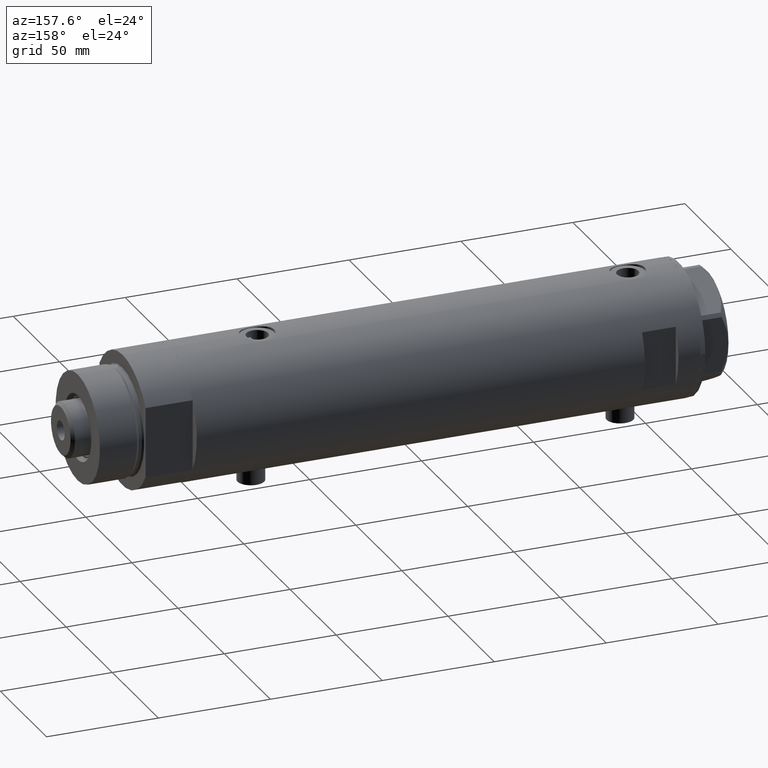
[diagram: clean part render]
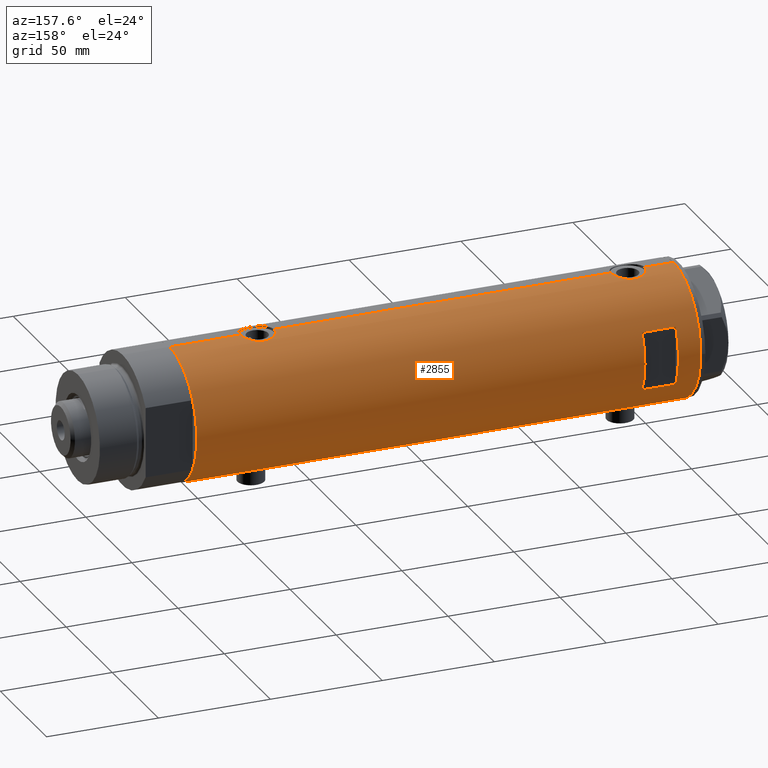
[diagram: same view with one face highlighted and labeled with its STEP entity id]
A machine part, auxiliary view. The second image highlights one B-rep face of the part: STEP entity #2855.
In plain terms, the highlighted cylindrical surface (partial cylindrical patch) has radius 29.5 mm, axis along (-1, -0, 0).
Its self-contained STEP definition (entity closure, byte-faithful):
#29 = CARTESIAN_POINT ( 'NONE',  ( -29.49128627113591605, 0.8212788586050359108, -70.09076875091126624 ) ) ;
#40 = EDGE_CURVE ( 'NONE', #1636, #4768, #3019, .T. ) ;
#48 = CARTESIAN_POINT ( 'NONE',  ( -29.45614208737134021, 1.620034288692375757, -70.26011356088388027 ) ) ;
#75 = CARTESIAN_POINT ( 'NONE',  ( -29.33500454540941149, 3.134363790739238542, 94.02262134463677512 ) ) ;
#78 = CARTESIAN_POINT ( 'NONE',  ( 29.50000000000000355, 0.4977435627019816122, -80.90000000000001990 ) ) ;
#105 = CARTESIAN_POINT ( 'NONE',  ( -29.12335997091253148, 4.707903814166463086, 92.73078007378799725 ) ) ;
#111 = ORIENTED_EDGE ( 'NONE', *, *, #40, .T. ) ;
#124 = LINE ( 'NONE', #1241, #2877 ) ;
#130 = CARTESIAN_POINT ( 'NONE',  ( 28.53063088452981688, 7.500206755597528030, -72.91171143095191098 ) ) ;
#142 = CARTESIAN_POINT ( 'NONE',  ( 29.50000000000000355, 0.000000000000000000, -112.5999999999999943 ) ) ;
#149 = AXIS2_PLACEMENT_3D ( 'NONE', #691, #2162, #2551 ) ;
#152 = CARTESIAN_POINT ( 'NONE',  ( 28.72322018454530479, 6.726124749058844721, -70.07293147149003687 ) ) ;
#176 = CARTESIAN_POINT ( 'NONE',  ( 29.45150476095192360, 1.707859807438206312, 84.79292881343934596 ) ) ;
#181 = CARTESIAN_POINT ( 'NONE',  ( 29.45150476095192360, 1.707859807438206312, -80.70707118656062562 ) ) ;
#194 = DIRECTION ( 'NONE',  ( 0.000000000000000000, 0.000000000000000000, 1.000000000000000000 ) ) ;
#293 = CARTESIAN_POINT ( 'NONE',  ( 28.98787507734748914, 5.475789924529805397, 97.23089043376624829 ) ) ;
#317 = CARTESIAN_POINT ( 'NONE',  ( 28.54372006395177053, 7.450900983269902689, 93.08765735635915917 ) ) ;
#330 = ORIENTED_EDGE ( 'NONE', *, *, #1113, .F. ) ;
#353 = ORIENTED_EDGE ( 'NONE', *, *, #3398, .F. ) ;
#372 = VERTEX_POINT ( 'NONE', #935 ) ;
#381 = DIRECTION ( 'NONE',  ( 0.000000000000000000, 0.000000000000000000, 1.000000000000000000 ) ) ;
#438 = CARTESIAN_POINT ( 'NONE',  ( -29.37021410611213668, 2.770135525807589261, 82.99365930977168659 ) ) ;
#440 = CARTESIAN_POINT ( 'NONE',  ( 28.54350045195476326, 7.451747857568912004, -74.38266002875501215 ) ) ;
#458 = CIRCLE ( 'NONE', #4725, 29.50000000000000355 ) ;
#461 = CARTESIAN_POINT ( 'NONE',  ( -28.99931529802531571, 5.412890550536858747, 85.46870800944782331 ) ) ;
#464 = CARTESIAN_POINT ( 'NONE',  ( 28.95615051861771860, 5.649234316505064690, -78.35715418746728744 ) ) ;
#485 = CARTESIAN_POINT ( 'NONE',  ( -28.83909818927743984, 6.209925900742494065, -75.48221924548005290 ) ) ;
#489 = EDGE_CURVE ( 'NONE', #965, #2620, #4490, .T. ) ;
#494 = CARTESIAN_POINT ( 'NONE',  ( 28.69800960089390074, 6.832546664705498429, -70.29724969708695426 ) ) ;
#512 = DIRECTION ( 'NONE',  ( -0.000000000000000000, -0.000000000000000000, -1.000000000000000000 ) ) ;
#514 = ORIENTED_EDGE ( 'NONE', *, *, #2893, .F. ) ;
#515 = CARTESIAN_POINT ( 'NONE',  ( 28.65280969280607337, 7.019670864411701849, -76.05213168683113167 ) ) ;
#522 = CARTESIAN_POINT ( 'NONE',  ( 12.96148139681573319, 26.49999999999998934, 102.6000000000000085 ) ) ;
#524 = CARTESIAN_POINT ( 'NONE',  ( 29.50000000000000355, 0.000000000000000000, -112.5999999999999943 ) ) ;
#537 = CARTESIAN_POINT ( 'NONE',  ( 28.59637095282950980, 7.245897747848937698, -75.35127374277611523 ) ) ;
#554 = CARTESIAN_POINT ( 'NONE',  ( -29.33379699751450786, 3.132328395749503169, -81.71232164486113447 ) ) ;
#587 = DIRECTION ( 'NONE',  ( 0.000000000000000000, 0.000000000000000000, 1.000000000000000000 ) ) ;
#590 = EDGE_CURVE ( 'NONE', #2620, #1695, #970, .T. ) ;
#594 = DIRECTION ( 'NONE',  ( 0.000000000000000000, 0.000000000000000000, 1.000000000000000000 ) ) ;
#597 = B_SPLINE_CURVE_WITH_KNOTS ( 'NONE', 3,
 ( #3262, #2465, #3289, #176, #3137, #4406, #1021, #3987, #3957, #1786, #1403, #3641, #2150, #2892, #4753, #4007, #2911, #3619, #628, #2494, #2562, #2538, #1067, #4724, #317, #3307, #1428, #3504, #681, #4368, #3667, #4025, #1050, #4769, #293, #4388, #1652, #2102, #659, #3596, #1764, #1445, #701, #4318, #2929, #2128 ),
 .UNSPECIFIED., .F., .F.,
 ( 4, 2, 2, 2, 2, 2, 2, 2, 2, 2, 2, 2, 2, 2, 2, 2, 2, 2, 2, 2, 2, 2, 4 ),
 ( 2.180446897674398484E-18, 0.001471587963626214742, 0.002207381945439317126, 0.002943175927252419943, 0.004414763890878623843, 0.005150557872691738370, 0.005886351854504852897, 0.007357939818131048991, 0.008829527781757242483, 0.009565321763570359612, 0.01030111574538347674, 0.01177270370900966763, 0.01324429167263586199, 0.01471587963626205808, 0.01545167361807515093, 0.01618746759988825071, 0.01692326158170134529, 0.01765905556351443986, 0.01913064352714060473, 0.02060223149076676613, 0.02207381945439293100, 0.02280961343620601170, 0.02354540741801909587 ),
 .UNSPECIFIED. ) ;
#628 = CARTESIAN_POINT ( 'NONE',  ( 28.63233008736633778, 7.102474189478622968, 89.67814868761111313 ) ) ;
#659 = CARTESIAN_POINT ( 'NONE',  ( 29.31521205951408504, 3.327945423969218108, 98.83906509227089998 ) ) ;
#681 = CARTESIAN_POINT ( 'NONE',  ( 28.72322018454530479, 6.726124749058844721, 95.42706852851001997 ) ) ;
#691 = CARTESIAN_POINT ( 'NONE',  ( 0.000000000000000000, 0.000000000000000000, -112.5999999999999943 ) ) ;
#701 = CARTESIAN_POINT ( 'NONE',  ( 29.48463566286631377, 0.9832945201638373378, 99.53937451762296007 ) ) ;
#712 = B_SPLINE_CURVE_WITH_KNOTS ( 'NONE', 3,
 ( #4181, #78, #2300, #181, #3046, #1246, #3442, #2728, #4212, #2361, #3088, #3481, #890, #464, #3849, #859, #3870, #515, #4520, #537, #2333, #440, #4235, #130, #1201, #2383, #1599, #494, #152, #1275, #1656, #3463, #1625, #2016, #1946, #1972, #4592, #2755, #3141, #2651, #4138, #2281, #1916, #2675, #3410, #4160 ),
 .UNSPECIFIED., .F., .F.,
 ( 4, 2, 2, 2, 2, 2, 2, 2, 2, 2, 2, 2, 2, 2, 2, 2, 2, 2, 2, 2, 2, 2, 4 ),
 ( 2.180446897674398484E-18, 0.001471587963626214742, 0.002207381945439317126, 0.002943175927252419943, 0.004414763890878623843, 0.005150557872691738370, 0.005886351854504852897, 0.007357939818131048991, 0.008829527781757242483, 0.009565321763570359612, 0.01030111574538347674, 0.01177270370900966763, 0.01324429167263586199, 0.01471587963626205808, 0.01545167361807515093, 0.01618746759988825071, 0.01692326158170134529, 0.01765905556351443986, 0.01913064352714060473, 0.02060223149076676613, 0.02207381945439293100, 0.02280961343620601170, 0.02354540741801909587 ),
 .UNSPECIFIED. ) ;
#719 = CYLINDRICAL_SURFACE ( 'NONE', #3972, 29.50000000000000355 ) ;
#731 = EDGE_CURVE ( 'NONE', #1545, #3779, #4246, .T. ) ;
#758 = CARTESIAN_POINT ( 'NONE',  ( -29.37156641804198642, 2.775801885207113795, -70.68527430293366365 ) ) ;
#763 = CARTESIAN_POINT ( 'NONE',  ( -29.50000000000000355, 3.612706708236066082E-15, 82.34999999999998010 ) ) ;
#779 = CARTESIAN_POINT ( 'NONE',  ( -29.46640581083894617, 1.421634556901802515, -70.21041108910578998 ) ) ;
#784 = CARTESIAN_POINT ( 'NONE',  ( -28.83925158138407596, 6.209208576703536764, 87.77801617131194689 ) ) ;
#805 = CARTESIAN_POINT ( 'NONE',  ( -28.96085629491409819, 5.616414220648533906, -73.52800360409990788 ) ) ;
#811 = CARTESIAN_POINT ( 'NONE',  ( -29.07990598238133018, 4.966177878631055975, 92.41685031646508719 ) ) ;
#824 = CARTESIAN_POINT ( 'NONE',  ( 29.50000000000000355, -8.867907290838723877E-21, -65.89999999999999147 ) ) ;
#830 = CARTESIAN_POINT ( 'NONE',  ( -29.41782704931129544, 2.208494778271264725, 94.45038297927172266 ) ) ;
#848 = CARTESIAN_POINT ( 'NONE',  ( -29.07990598238133373, 4.966177878631055975, -72.48314968353490428 ) ) ;
#854 = CARTESIAN_POINT ( 'NONE',  ( -28.94521404191312541, 5.694822755760260868, 86.01666953598655141 ) ) ;
#859 = CARTESIAN_POINT ( 'NONE',  ( 28.77473834757382321, 6.507156404236272174, -77.16162684060296328 ) ) ;
#865 = EDGE_CURVE ( 'NONE', #3613, #965, #2823, .T. ) ;
#890 = CARTESIAN_POINT ( 'NONE',  ( 29.05056090758568388, 5.132790299589563787, -78.87391726652083435 ) ) ;
#899 = EDGE_CURVE ( 'NONE', #1695, #3613, #458, .T. ) ;
#923 = LINE ( 'NONE', #142, #1243 ) ;
#935 = CARTESIAN_POINT ( 'NONE',  ( 29.50000000000000355, 0.000000000000000000, 112.5999999999999943 ) ) ;
#936 = VECTOR ( 'NONE', #594, 1000.000000000000000 ) ;
#965 = VERTEX_POINT ( 'NONE', #4729 ) ;
#970 = LINE ( 'NONE', #4000, #936 ) ;
#1003 = CARTESIAN_POINT ( 'NONE',  ( 29.50000000000000355, -2.245054425791785664E-15, -80.90000000000000568 ) ) ;
#1021 = CARTESIAN_POINT ( 'NONE',  ( 29.38138226830143651, 2.652609128011945927, 85.08045398040326290 ) ) ;
#1048 = VERTEX_POINT ( 'NONE', #2245 ) ;
#1050 = CARTESIAN_POINT ( 'NONE',  ( 28.89369475765812112, 5.952264974793434860, 96.66950516186247455 ) ) ;
#1067 = CARTESIAN_POINT ( 'NONE',  ( 28.53073993742370362, 7.499791908386164607, 91.60538051566963702 ) ) ;
#1113 = EDGE_CURVE ( 'NONE', #4067, #3168, #2614, .T. ) ;
#1142 = CARTESIAN_POINT ( 'NONE',  ( -28.96258065965880846, 5.606121065329687347, -79.07051985068761724 ) ) ;
#1146 = CARTESIAN_POINT ( 'NONE',  ( -29.46640581083894261, 1.421634556901802293, 94.68958891089417307 ) ) ;
#1166 = EDGE_CURVE ( 'NONE', #1636, #2985, #923, .T. ) ;
#1169 = CARTESIAN_POINT ( 'NONE',  ( -29.49128627113591250, 0.8212788586050364659, 94.80923124908871102 ) ) ;
#1197 = CARTESIAN_POINT ( 'NONE',  ( -29.21045586191521082, 4.133246019522336390, 93.30573901566481254 ) ) ;
#1201 = CARTESIAN_POINT ( 'NONE',  ( 28.54372006395177053, 7.450900983269902689, -72.41234264364082662 ) ) ;
#1218 = CARTESIAN_POINT ( 'NONE',  ( -29.43341305963176069, 2.016871341298213771, 82.67025331001194388 ) ) ;
#1241 = CARTESIAN_POINT ( 'NONE',  ( 29.50000000000000355, 0.000000000000000000, -112.5999999999999943 ) ) ;
#1243 = VECTOR ( 'NONE', #194, 1000.000000000000000 ) ;
#1246 = CARTESIAN_POINT ( 'NONE',  ( 29.40165444879503909, 2.418426732012825653, -80.50367056434788537 ) ) ;
#1261 = VECTOR ( 'NONE', #587, 1000.000000000000000 ) ;
#1265 = CARTESIAN_POINT ( 'NONE',  ( -29.25435602127559065, 3.814249285079244434, -81.26783729533993039 ) ) ;
#1275 = CARTESIAN_POINT ( 'NONE',  ( 28.77649569280672992, 6.494415104660927973, -69.64065011183373599 ) ) ;
#1280 = ORIENTED_EDGE ( 'NONE', *, *, #899, .F. ) ;
#1283 = EDGE_CURVE ( 'NONE', #1048, #372, #4198, .T. ) ;
#1312 = VERTEX_POINT ( 'NONE', #824 ) ;
#1334 = CARTESIAN_POINT ( 'NONE',  ( -29.43341305963176424, 2.016871341298210663, -82.22974668998807601 ) ) ;
#1389 = CARTESIAN_POINT ( 'NONE',  ( -12.96148139681574030, 26.50000000000000355, 87.60000000000000853 ) ) ;
#1397 = ORIENTED_EDGE ( 'NONE', *, *, #1283, .F. ) ;
#1403 = CARTESIAN_POINT ( 'NONE',  ( 29.14416130131008131, 4.572185141625607407, 86.14974588234440489 ) ) ;
#1422 = ORIENTED_EDGE ( 'NONE', *, *, #3069, .T. ) ;
#1428 = CARTESIAN_POINT ( 'NONE',  ( 28.62953349941190595, 7.116010646391501382, 94.51979460923098486 ) ) ;
#1445 = CARTESIAN_POINT ( 'NONE',  ( 29.47533087885488712, 1.230190383163952461, 99.50252131767059893 ) ) ;
#1475 = CARTESIAN_POINT ( 'NONE',  ( -28.83925158138407596, 6.209208576703537652, -77.12198382868805879 ) ) ;
#1503 = CARTESIAN_POINT ( 'NONE',  ( -29.21045586191521082, 4.133246019522336390, -71.59426098433517893 ) ) ;
#1510 = ORIENTED_EDGE ( 'NONE', *, *, #3290, .F. ) ;
#1522 = CARTESIAN_POINT ( 'NONE',  ( -29.43187585711095977, 2.013330896687708815, -70.37959139970894284 ) ) ;
#1527 = CARTESIAN_POINT ( 'NONE',  ( -29.50000000000000355, 0.2042768310961497746, 82.34999999999999432 ) ) ;
#1543 = CARTESIAN_POINT ( 'NONE',  ( -28.90008889585329044, 5.919338933253946777, -74.28359792941951412 ) ) ;
#1545 = VERTEX_POINT ( 'NONE', #4180 ) ;
#1549 = CARTESIAN_POINT ( 'NONE',  ( -28.99817753551064570, 5.423057650933436058, 91.73396151462590353 ) ) ;
#1575 = CARTESIAN_POINT ( 'NONE',  ( -28.83028740688046554, 6.250162243045982891, 88.19353934091623159 ) ) ;
#1581 = ORIENTED_EDGE ( 'NONE', *, *, #865, .F. ) ;
#1590 = CARTESIAN_POINT ( 'NONE',  ( -29.50000000000000355, 3.612706708236066082E-15, -82.54999999999999716 ) ) ;
#1595 = CARTESIAN_POINT ( 'NONE',  ( -29.50000000000000355, -5.649958391113855330E-16, 94.84999999999999432 ) ) ;
#1599 = CARTESIAN_POINT ( 'NONE',  ( 28.62953349941190595, 7.116010646391501382, -70.98020539076900093 ) ) ;
#1625 = CARTESIAN_POINT ( 'NONE',  ( 28.89369475765812112, 5.952264974793434860, -68.83049483813751124 ) ) ;
#1636 = VERTEX_POINT ( 'NONE', #3553 ) ;
#1652 = CARTESIAN_POINT ( 'NONE',  ( 29.14546206473281487, 4.578181670952607085, 98.06056091603291236 ) ) ;
#1656 = CARTESIAN_POINT ( 'NONE',  ( 28.80468126786725236, 6.368639251981151439, -69.43139489317928792 ) ) ;
#1680 = EDGE_CURVE ( 'NONE', #1545, #3378, #2331, .T. ) ;
#1695 = VERTEX_POINT ( 'NONE', #3920 ) ;
#1760 = CARTESIAN_POINT ( 'NONE',  ( 29.50000000000000355, -2.245054425791785664E-15, 84.59999999999998010 ) ) ;
#1764 = CARTESIAN_POINT ( 'NONE',  ( 29.43913092143246146, 1.954882548385547203, 99.35749234733353319 ) ) ;
#1786 = CARTESIAN_POINT ( 'NONE',  ( 29.17471722935868783, 4.373569479501283830, 86.00231157590984310 ) ) ;
#1805 = EDGE_LOOP ( 'NONE', ( #4568, #3607, #1581, #1280 ) ) ;
#1835 = DIRECTION ( 'NONE',  ( -0.000000000000000000, -0.000000000000000000, -1.000000000000000000 ) ) ;
#1868 = AXIS2_PLACEMENT_3D ( 'NONE', #1904, #381, #3399 ) ;
#1869 = CARTESIAN_POINT ( 'NONE',  ( -29.38727827406289705, 2.583363936682820494, 82.90521973871331340 ) ) ;
#1892 = CARTESIAN_POINT ( 'NONE',  ( -28.86473101544358144, 6.089252369705490331, 90.02332949166030573 ) ) ;
#1904 = CARTESIAN_POINT ( 'NONE',  ( 0.000000000000000000, 0.000000000000000000, 112.5999999999999943 ) ) ;
#1912 = CARTESIAN_POINT ( 'NONE',  ( -29.48933702067640894, 0.8192029158410168987, 82.40049277733302802 ) ) ;
#1916 = CARTESIAN_POINT ( 'NONE',  ( 29.48463566286631377, 0.9832945201638373378, -65.96062548237703993 ) ) ;
#1929 = VECTOR ( 'NONE', #512, 1000.000000000000000 ) ;
#1941 = CARTESIAN_POINT ( 'NONE',  ( -29.25454443288369077, 3.812919888526638879, 93.56897379180907137 ) ) ;
#1946 = CARTESIAN_POINT ( 'NONE',  ( 28.98787507734748914, 5.475789924529805397, -68.26910956623378013 ) ) ;
#1964 = CARTESIAN_POINT ( 'NONE',  ( -29.12318177724206336, 4.709191267490246524, -80.42971050241654041 ) ) ;
#1969 = CARTESIAN_POINT ( 'NONE',  ( -29.01875661852155019, 5.308007315944001547, 85.29411629999104605 ) ) ;
#1972 = CARTESIAN_POINT ( 'NONE',  ( 29.08308069045667565, 4.954707331652133284, -67.74826371623228738 ) ) ;
#2016 = CARTESIAN_POINT ( 'NONE',  ( 28.95590528945748687, 5.641861744747101781, -68.45235088071116536 ) ) ;
#2102 = CARTESIAN_POINT ( 'NONE',  ( 29.26131531204080360, 3.767377415172557864, 98.60345302571128911 ) ) ;
#2128 = CARTESIAN_POINT ( 'NONE',  ( 29.50000000000000355, -8.867907290838723877E-21, 99.59999999999999432 ) ) ;
#2150 = CARTESIAN_POINT ( 'NONE',  ( 29.05056090758568388, 5.132790299589563787, 86.62608273347915144 ) ) ;
#2162 = DIRECTION ( 'NONE',  ( 0.000000000000000000, 0.000000000000000000, 1.000000000000000000 ) ) ;
#2188 = DIRECTION ( 'NONE',  ( 0.000000000000000000, 0.000000000000000000, 1.000000000000000000 ) ) ;
#2209 = FACE_BOUND ( 'NONE', #1805, .T. ) ;
#2225 = CARTESIAN_POINT ( 'NONE',  ( -28.91416466586724709, 5.850419487802254181, -74.09172352366370262 ) ) ;
#2229 = CARTESIAN_POINT ( 'NONE',  ( -29.21113960567727119, 4.128622307952519499, 83.88985466616443887 ) ) ;
#2236 = LINE ( 'NONE', #2927, #3658 ) ;
#2245 = CARTESIAN_POINT ( 'NONE',  ( 29.50000000000000355, -8.867907290838723877E-21, 99.59999999999999432 ) ) ;
#2255 = CARTESIAN_POINT ( 'NONE',  ( -29.49787850362429964, 0.4089683628077637745, 82.35998973562986691 ) ) ;
#2277 = CARTESIAN_POINT ( 'NONE',  ( -29.07940225710134285, 4.969011347753391483, 84.78730265529817700 ) ) ;
#2280 = EDGE_CURVE ( 'NONE', #4067, #3779, #2236, .T. ) ;
#2281 = CARTESIAN_POINT ( 'NONE',  ( 29.47533087885488712, 1.230190383163952461, -65.99747868232940107 ) ) ;
#2297 = CARTESIAN_POINT ( 'NONE',  ( -28.87539346372184923, 6.038655803256915533, 90.22452664083071738 ) ) ;
#2300 = CARTESIAN_POINT ( 'NONE',  ( 29.48742029994219749, 0.9867701249543477937, -80.85094507494221716 ) ) ;
#2317 = CARTESIAN_POINT ( 'NONE',  ( -29.50000000000001421, 0.4142160563134685836, -70.05000000000001137 ) ) ;
#2331 = LINE ( 'NONE', #4558, #3964 ) ;
#2333 = CARTESIAN_POINT ( 'NONE',  ( 28.58083212642745607, 7.306745240314161727, -75.10953669436209168 ) ) ;
#2357 = DIRECTION ( 'NONE',  ( 0.000000000000000000, 0.000000000000000000, 1.000000000000000000 ) ) ;
#2361 = CARTESIAN_POINT ( 'NONE',  ( 29.17471722935868783, 4.373569479501283830, -79.49768842409015690 ) ) ;
#2383 = CARTESIAN_POINT ( 'NONE',  ( 28.59328333056173221, 7.258376466535483296, -71.44875332515168509 ) ) ;
#2389 = DIRECTION ( 'NONE',  ( 0.000000000000000000, 4.625929269271487689E-15, 1.000000000000000000 ) ) ;
#2422 = CARTESIAN_POINT ( 'NONE',  ( -29.07940225710134285, 4.969011347753393260, -80.11269734470184289 ) ) ;
#2429 = CARTESIAN_POINT ( 'NONE',  ( -29.50000000000000355, 3.612708057484692393E-15, -112.5999999999999943 ) ) ;
#2458 = CARTESIAN_POINT ( 'NONE',  ( -29.50000000000000355, 3.612706708236066082E-15, 82.34999999999998010 ) ) ;
#2465 = CARTESIAN_POINT ( 'NONE',  ( 29.50000000000000355, 0.4977435627019816122, 84.59999999999999432 ) ) ;
#2494 = CARTESIAN_POINT ( 'NONE',  ( 28.59637095282950980, 7.245897747848937698, 90.14872625722388477 ) ) ;
#2496 = CARTESIAN_POINT ( 'NONE',  ( -28.83028740688047264, 6.250162243045982891, -76.70646065908368882 ) ) ;
#2538 = CARTESIAN_POINT ( 'NONE',  ( 28.54350045195476326, 7.451747857568912004, 91.11733997124495943 ) ) ;
#2550 = FACE_OUTER_BOUND ( 'NONE', #3676, .T. ) ;
#2551 = DIRECTION ( 'NONE',  ( 1.000000000000000000, 0.000000000000000000, 0.000000000000000000 ) ) ;
#2562 = CARTESIAN_POINT ( 'NONE',  ( 28.58083212642745607, 7.306745240314161727, 90.39046330563792253 ) ) ;
#2594 = CARTESIAN_POINT ( 'NONE',  ( -29.41782704931130255, 2.208494778271264725, -70.44961702072824039 ) ) ;
#2613 = CARTESIAN_POINT ( 'NONE',  ( -28.99931529802531216, 5.412890550536858747, -79.43129199055219658 ) ) ;
#2614 = B_SPLINE_CURVE_WITH_KNOTS ( 'NONE', 3,
 ( #4442, #2317, #29, #779, #48, #1522, #2594, #758, #3008, #4483, #1503, #4174, #848, #4126, #805, #2225, #1543, #3816, #4510, #485, #3332, #2496, #1475, #2964, #4081, #2990, #1142, #2613, #3102, #2422, #1964, #4297, #1265, #4607, #554, #3882, #3913, #1334, #4579, #3133, #3546, #3842, #4627, #1590 ),
 .UNSPECIFIED., .F., .F.,
 ( 4, 2, 2, 2, 2, 2, 2, 2, 2, 2, 2, 2, 2, 2, 2, 2, 2, 2, 2, 2, 2, 4 ),
 ( 5.488367186017542912E-19, 0.001224749128302296758, 0.001837123692453444595, 0.002449498256604592649, 0.003674247384906904803, 0.004898996513209217391, 0.006123745641511529544, 0.007348494769813842566, 0.007960869333964998643, 0.008573243898116155587, 0.009797993026418507639, 0.01102274215472085969, 0.01224749128302321348, 0.01285986584717438777, 0.01347224041132556553, 0.01469698953962788462, 0.01592173866793020545, 0.01653411323208136413, 0.01714648779623252281, 0.01837123692453482629, 0.01898361148868597109, 0.01959598605283711936 ),
 .UNSPECIFIED. ) ;
#2620 = VERTEX_POINT ( 'NONE', #1389 ) ;
#2628 = DIRECTION ( 'NONE',  ( 0.000000000000000000, 0.000000000000000000, 1.000000000000000000 ) ) ;
#2645 = CARTESIAN_POINT ( 'NONE',  ( -29.31451746246149170, 3.307268797680003036, 83.29285158014991453 ) ) ;
#2651 = CARTESIAN_POINT ( 'NONE',  ( 29.40387556522357571, 2.422597899785628339, -66.28513960230164059 ) ) ;
#2671 = CARTESIAN_POINT ( 'NONE',  ( -28.89816269917384872, 5.930588606439751054, 86.58529684457830911 ) ) ;
#2675 = CARTESIAN_POINT ( 'NONE',  ( 29.49693976195335665, 0.4910732786937767047, -65.91200905704373270 ) ) ;
#2693 = CARTESIAN_POINT ( 'NONE',  ( -29.48289442777306846, 1.024392307325220797, 82.43111777471298751 ) ) ;
#2728 = CARTESIAN_POINT ( 'NONE',  ( 29.31463363472445849, 3.333180401682688476, -80.13656844683043801 ) ) ;
#2755 = CARTESIAN_POINT ( 'NONE',  ( 29.26131531204080360, 3.767377415172557864, -66.89654697428868246 ) ) ;
#2823 = LINE ( 'NONE', #3846, #1929 ) ;
#2855 = ADVANCED_FACE ( 'NONE', ( #2209, #2550 ), #719, .T. ) ;
#2877 = VECTOR ( 'NONE', #2357, 1000.000000000000000 ) ;
#2892 = CARTESIAN_POINT ( 'NONE',  ( 28.95615051861771860, 5.649234316505064690, 87.14284581253269835 ) ) ;
#2893 = EDGE_CURVE ( 'NONE', #2985, #1312, #712, .T. ) ;
#2911 = CARTESIAN_POINT ( 'NONE',  ( 28.72066933684368095, 6.738715173607861431, 88.77163044046442053 ) ) ;
#2927 = CARTESIAN_POINT ( 'NONE',  ( -29.50000000000000355, 3.612708057484692393E-15, -112.5999999999999943 ) ) ;
#2929 = CARTESIAN_POINT ( 'NONE',  ( 29.50000000000000355, 0.2453482418156857914, 99.59999999999998010 ) ) ;
#2964 = CARTESIAN_POINT ( 'NONE',  ( -28.87327190949137901, 6.049038945481233220, -77.92451728205175243 ) ) ;
#2985 = VERTEX_POINT ( 'NONE', #1003 ) ;
#2990 = CARTESIAN_POINT ( 'NONE',  ( -28.94521404191310765, 5.694822755760260868, -78.88333046401341164 ) ) ;
#2994 = CARTESIAN_POINT ( 'NONE',  ( -29.25435602127558354, 3.814249285079243101, 83.63216270466004687 ) ) ;
#3008 = CARTESIAN_POINT ( 'NONE',  ( -29.33500454540941149, 3.134363790739238542, -70.87737865536321635 ) ) ;
#3013 = CARTESIAN_POINT ( 'NONE',  ( -29.50000000000000711, 0.4142160563134686946, 94.85000000000000853 ) ) ;
#3019 = CIRCLE ( 'NONE', #149, 29.50000000000000355 ) ;
#3041 = CARTESIAN_POINT ( 'NONE',  ( -28.90008889585329399, 5.919338933253945889, 90.61640207058046315 ) ) ;
#3046 = CARTESIAN_POINT ( 'NONE',  ( 29.43668864566816268, 1.946133027943911076, -80.64730912701001841 ) ) ;
#3063 = CARTESIAN_POINT ( 'NONE',  ( -29.12318177724206691, 4.709191267490246524, 84.47028949758345107 ) ) ;
#3069 = EDGE_CURVE ( 'NONE', #4768, #3168, #4283, .T. ) ;
#3083 = CARTESIAN_POINT ( 'NONE',  ( -28.96085629491408753, 5.616414220648533018, 91.37199639590005518 ) ) ;
#3088 = CARTESIAN_POINT ( 'NONE',  ( 29.14416130131008131, 4.572185141625607407, -79.35025411765556669 ) ) ;
#3102 = CARTESIAN_POINT ( 'NONE',  ( -29.01875661852156085, 5.308007315944005100, -79.60588370000893121 ) ) ;
#3133 = CARTESIAN_POINT ( 'NONE',  ( -29.48289442777306490, 1.024392307325220353, -82.46888222528697554 ) ) ;
#3137 = CARTESIAN_POINT ( 'NONE',  ( 29.43668864566816268, 1.946133027943911076, 84.85269087298998159 ) ) ;
#3141 = CARTESIAN_POINT ( 'NONE',  ( 29.31521205951408504, 3.327945423969218108, -66.66093490772910002 ) ) ;
#3168 = VERTEX_POINT ( 'NONE', #4467 ) ;
#3262 = CARTESIAN_POINT ( 'NONE',  ( 29.50000000000000355, -2.245054425791785664E-15, 84.59999999999998010 ) ) ;
#3271 = VECTOR ( 'NONE', #3425, 1000.000000000000000 ) ;
#3289 = CARTESIAN_POINT ( 'NONE',  ( 29.48742029994219749, 0.9867701249543477937, 84.64905492505776863 ) ) ;
#3290 = EDGE_CURVE ( 'NONE', #1312, #4421, #124, .T. ) ;
#3307 = CARTESIAN_POINT ( 'NONE',  ( 28.59328333056173221, 7.258376466535483296, 94.05124667484831491 ) ) ;
#3332 = CARTESIAN_POINT ( 'NONE',  ( -28.83035796536222506, 6.249836767212676669, -75.88856505377279404 ) ) ;
#3378 = VERTEX_POINT ( 'NONE', #4586 ) ;
#3398 = EDGE_CURVE ( 'NONE', #4421, #1048, #597, .T. ) ;
#3399 = DIRECTION ( 'NONE',  ( 1.000000000000000000, 0.000000000000000000, 0.000000000000000000 ) ) ;
#3407 = CARTESIAN_POINT ( 'NONE',  ( -29.43187585711094556, 2.013330896687708815, 94.52040860029102021 ) ) ;
#3410 = CARTESIAN_POINT ( 'NONE',  ( 29.50000000000000355, 0.2453482418156857914, -65.89999999999999147 ) ) ;
#3425 = DIRECTION ( 'NONE',  ( 0.000000000000000000, 0.000000000000000000, 1.000000000000000000 ) ) ;
#3437 = CARTESIAN_POINT ( 'NONE',  ( -28.83035796536221440, 6.249836767212674005, 89.01143494622721164 ) ) ;
#3442 = CARTESIAN_POINT ( 'NONE',  ( 29.38138226830143651, 2.652609128011945927, -80.41954601959670867 ) ) ;
#3463 = CARTESIAN_POINT ( 'NONE',  ( 28.86328010881651807, 6.097564286278117862, -69.02631709077299149 ) ) ;
#3481 = CARTESIAN_POINT ( 'NONE',  ( 29.08204711695422162, 4.951923910293533737, -79.03816021594298036 ) ) ;
#3504 = CARTESIAN_POINT ( 'NONE',  ( 28.69800960089390074, 6.832546664705498429, 95.20275030291307417 ) ) ;
#3546 = CARTESIAN_POINT ( 'NONE',  ( -29.48933702067640539, 0.8192029158410167877, -82.49950722266696346 ) ) ;
#3553 = CARTESIAN_POINT ( 'NONE',  ( 29.50000000000000355, 0.000000000000000000, -112.5999999999999943 ) ) ;
#3596 = CARTESIAN_POINT ( 'NONE',  ( 29.40387556522357571, 2.422597899785628339, 99.21486039769831677 ) ) ;
#3607 = ORIENTED_EDGE ( 'NONE', *, *, #489, .F. ) ;
#3613 = VERTEX_POINT ( 'NONE', #522 ) ;
#3619 = CARTESIAN_POINT ( 'NONE',  ( 28.65280969280607337, 7.019670864411701849, 89.44786831316893938 ) ) ;
#3641 = CARTESIAN_POINT ( 'NONE',  ( 29.08204711695422162, 4.951923910293533737, 86.46183978405699122 ) ) ;
#3658 = VECTOR ( 'NONE', #2628, 1000.000000000000000 ) ;
#3667 = CARTESIAN_POINT ( 'NONE',  ( 28.80468126786725236, 6.368639251981151439, 96.06860510682072629 ) ) ;
#3676 = EDGE_LOOP ( 'NONE', ( #111, #1422, #330, #3938, #4751, #4662, #4471, #1397, #353, #1510, #514, #4014 ) ) ;
#3677 = DIRECTION ( 'NONE',  ( 1.000000000000000000, 0.000000000000000000, 0.000000000000000000 ) ) ;
#3724 = CARTESIAN_POINT ( 'NONE',  ( 0.000000000000000000, 0.000000000000000000, -112.5999999999999943 ) ) ;
#3769 = CARTESIAN_POINT ( 'NONE',  ( -28.91416466586725065, 5.850419487802252405, 90.80827647633628885 ) ) ;
#3779 = VERTEX_POINT ( 'NONE', #2458 ) ;
#3793 = CARTESIAN_POINT ( 'NONE',  ( -29.45614208737133310, 1.620034288692375535, 94.63988643911606857 ) ) ;
#3816 = CARTESIAN_POINT ( 'NONE',  ( -28.87539346372185634, 6.038655803256916421, -74.67547335916927409 ) ) ;
#3824 = CARTESIAN_POINT ( 'NONE',  ( -29.45783481716065211, 1.627188261681546511, 82.55163589091053211 ) ) ;
#3842 = CARTESIAN_POINT ( 'NONE',  ( -29.49787850362430675, 0.4089683628077636635, -82.54001026437013877 ) ) ;
#3846 = CARTESIAN_POINT ( 'NONE',  ( 12.96148139681573319, 26.49999999999999645, -112.5999999999999943 ) ) ;
#3849 = CARTESIAN_POINT ( 'NONE',  ( 28.89325003604223951, 5.958922200807248437, -77.98084786495516596 ) ) ;
#3869 = DIRECTION ( 'NONE',  ( 0.000000000000000000, 0.000000000000000000, 1.000000000000000000 ) ) ;
#3870 = CARTESIAN_POINT ( 'NONE',  ( 28.72066933684368095, 6.738715173607861431, -76.72836955953555105 ) ) ;
#3877 = DIRECTION ( 'NONE',  ( 0.000000000000000000, 1.000000000000000000, -4.704334850106595203E-15 ) ) ;
#3882 = CARTESIAN_POINT ( 'NONE',  ( -29.37021410611212957, 2.770135525807589261, -81.90634069022829067 ) ) ;
#3913 = CARTESIAN_POINT ( 'NONE',  ( -29.38727827406289705, 2.583363936682820494, -81.99478026128664965 ) ) ;
#3920 = CARTESIAN_POINT ( 'NONE',  ( -12.96148139681573319, 26.49999999999998934, 102.6000000000000085 ) ) ;
#3938 = ORIENTED_EDGE ( 'NONE', *, *, #2280, .T. ) ;
#3956 = CARTESIAN_POINT ( 'NONE',  ( -29.50000000000000355, -5.649958391113855330E-16, -70.04999999999998295 ) ) ;
#3957 = CARTESIAN_POINT ( 'NONE',  ( 29.26187100173484623, 3.763222966830672256, 85.59401741939379349 ) ) ;
#3964 = VECTOR ( 'NONE', #3869, 1000.000000000000000 ) ;
#3972 = AXIS2_PLACEMENT_3D ( 'NONE', #3724, #2188, #3677 ) ;
#3987 = CARTESIAN_POINT ( 'NONE',  ( 29.31463363472445849, 3.333180401682688476, 85.36343155316953357 ) ) ;
#3991 = CARTESIAN_POINT ( 'NONE',  ( 0.000000000000000000, 0.000000000000000000, 102.6000000000000085 ) ) ;
#4000 = CARTESIAN_POINT ( 'NONE',  ( -12.96148139681573319, 26.49999999999999645, -112.5999999999999943 ) ) ;
#4007 = CARTESIAN_POINT ( 'NONE',  ( 28.77473834757382321, 6.507156404236272174, 88.33837315939702250 ) ) ;
#4014 = ORIENTED_EDGE ( 'NONE', *, *, #1166, .F. ) ;
#4025 = CARTESIAN_POINT ( 'NONE',  ( 28.86328010881651807, 6.097564286278117862, 96.47368290922692324 ) ) ;
#4030 = DIRECTION ( 'NONE',  ( 1.000000000000000000, -1.776356839400250267E-15, 0.000000000000000000 ) ) ;
#4067 = VERTEX_POINT ( 'NONE', #3956 ) ;
#4081 = CARTESIAN_POINT ( 'NONE',  ( -28.89816269917384872, 5.930588606439751942, -78.31470315542169658 ) ) ;
#4106 = CARTESIAN_POINT ( 'NONE',  ( -29.33379699751450076, 3.132328395749502725, 83.18767835513884279 ) ) ;
#4126 = CARTESIAN_POINT ( 'NONE',  ( -28.99817753551064925, 5.423057650933435170, -73.16603848537405952 ) ) ;
#4138 = CARTESIAN_POINT ( 'NONE',  ( 29.43913092143246146, 1.954882548385547203, -66.14250765266646681 ) ) ;
#4154 = CARTESIAN_POINT ( 'NONE',  ( -29.37156641804199353, 2.775801885207114239, 94.21472569706631361 ) ) ;
#4156 = EDGE_CURVE ( 'NONE', #372, #3378, #4353, .T. ) ;
#4160 = CARTESIAN_POINT ( 'NONE',  ( 29.50000000000000355, -8.867907290838723877E-21, -65.89999999999999147 ) ) ;
#4174 = CARTESIAN_POINT ( 'NONE',  ( -29.12335997091253503, 4.707903814166464862, -72.16921992621200843 ) ) ;
#4178 = CARTESIAN_POINT ( 'NONE',  ( -28.87327190949138256, 6.049038945481234109, 86.97548271794826746 ) ) ;
#4180 = CARTESIAN_POINT ( 'NONE',  ( -29.50000000000000355, -5.649958391113855330E-16, 94.84999999999999432 ) ) ;
#4181 = CARTESIAN_POINT ( 'NONE',  ( 29.50000000000000355, -2.245054425791785664E-15, -80.90000000000000568 ) ) ;
#4198 = LINE ( 'NONE', #524, #3271 ) ;
#4212 = CARTESIAN_POINT ( 'NONE',  ( 29.26187100173484623, 3.763222966830672256, -79.90598258060620651 ) ) ;
#4235 = CARTESIAN_POINT ( 'NONE',  ( 28.53073993742370362, 7.499791908386164607, -73.89461948433039140 ) ) ;
#4246 = B_SPLINE_CURVE_WITH_KNOTS ( 'NONE', 3,
 ( #1595, #3013, #1169, #1146, #3793, #3407, #830, #4154, #75, #1941, #1197, #105, #811, #1549, #3083, #3769, #3041, #2297, #1892, #4517, #3437, #1575, #784, #4178, #2671, #854, #4537, #461, #1969, #2277, #3063, #2229, #2994, #2645, #4106, #438, #1869, #1218, #3824, #2693, #1912, #2255, #1527, #763 ),
 .UNSPECIFIED., .F., .F.,
 ( 4, 2, 2, 2, 2, 2, 2, 2, 2, 2, 2, 2, 2, 2, 2, 2, 2, 2, 2, 2, 2, 4 ),
 ( 5.488367186017542912E-19, 0.001224749128302359208, 0.001837123692453538487, 0.002449498256604717549, 0.003674247384907060928, 0.004898996513209404741, 0.006123745641511747252, 0.007348494769814091498, 0.007960869333965264055, 0.008573243898116434877, 0.009797993026418740092, 0.01102274215472104531, 0.01224749128302334705, 0.01285986584717448145, 0.01347224041132561584, 0.01469698953962791585, 0.01592173866793021586, 0.01653411323208136413, 0.01714648779623251240, 0.01837123692453481241, 0.01898361148868596762, 0.01959598605283711936 ),
 .UNSPECIFIED. ) ;
#4263 = CARTESIAN_POINT ( 'NONE',  ( 0.000000000000000000, 0.000000000000000000, 87.60000000000010800 ) ) ;
#4283 = LINE ( 'NONE', #2429, #1261 ) ;
#4297 = CARTESIAN_POINT ( 'NONE',  ( -29.21113960567727119, 4.128622307952520387, -81.01014533383550997 ) ) ;
#4318 = CARTESIAN_POINT ( 'NONE',  ( 29.49693976195335665, 0.4910732786937767047, 99.58799094295619625 ) ) ;
#4353 = CIRCLE ( 'NONE', #1868, 29.50000000000000355 ) ;
#4368 = CARTESIAN_POINT ( 'NONE',  ( 28.77649569280672992, 6.494415104660927973, 95.85934988816624980 ) ) ;
#4388 = CARTESIAN_POINT ( 'NONE',  ( 29.08308069045667565, 4.954707331652133284, 97.75173628376772683 ) ) ;
#4406 = CARTESIAN_POINT ( 'NONE',  ( 29.40165444879503909, 2.418426732012825653, 84.99632943565210041 ) ) ;
#4421 = VERTEX_POINT ( 'NONE', #1760 ) ;
#4442 = CARTESIAN_POINT ( 'NONE',  ( -29.50000000000000355, -5.649958391113855330E-16, -70.04999999999998295 ) ) ;
#4467 = CARTESIAN_POINT ( 'NONE',  ( -29.50000000000000355, 3.612706708236066082E-15, -82.54999999999999716 ) ) ;
#4471 = ORIENTED_EDGE ( 'NONE', *, *, #4156, .F. ) ;
#4483 = CARTESIAN_POINT ( 'NONE',  ( -29.25454443288369433, 3.812919888526639323, -71.33102620819090589 ) ) ;
#4490 = CIRCLE ( 'NONE', #4791, 29.50000000000000355 ) ;
#4510 = CARTESIAN_POINT ( 'NONE',  ( -28.86473101544358499, 6.089252369705491219, -74.87667050833968574 ) ) ;
#4517 = CARTESIAN_POINT ( 'NONE',  ( -28.83909818927743629, 6.209925900742494065, 89.41778075451991015 ) ) ;
#4520 = CARTESIAN_POINT ( 'NONE',  ( 28.63233008736633778, 7.102474189478622968, -75.82185131238890108 ) ) ;
#4537 = CARTESIAN_POINT ( 'NONE',  ( -28.96258065965880846, 5.606121065329690012, 85.82948014931236003 ) ) ;
#4558 = CARTESIAN_POINT ( 'NONE',  ( -29.50000000000000355, 3.612708057484692393E-15, -112.5999999999999943 ) ) ;
#4568 = ORIENTED_EDGE ( 'NONE', *, *, #590, .F. ) ;
#4579 = CARTESIAN_POINT ( 'NONE',  ( -29.45783481716065921, 1.627188261681547399, -82.34836410908947357 ) ) ;
#4586 = CARTESIAN_POINT ( 'NONE',  ( -29.50000000000000355, 3.612708057484692393E-15, 112.5999999999999943 ) ) ;
#4592 = CARTESIAN_POINT ( 'NONE',  ( 29.14546206473281487, 4.578181670952607085, -67.43943908396705922 ) ) ;
#4607 = CARTESIAN_POINT ( 'NONE',  ( -29.31451746246149881, 3.307268797680005257, -81.60714841985003432 ) ) ;
#4627 = CARTESIAN_POINT ( 'NONE',  ( -29.50000000000000711, 0.2042768310961498301, -82.55000000000001137 ) ) ;
#4662 = ORIENTED_EDGE ( 'NONE', *, *, #1680, .T. ) ;
#4724 = CARTESIAN_POINT ( 'NONE',  ( 28.53063088452981688, 7.500206755597528030, 92.58828856904804638 ) ) ;
#4725 = AXIS2_PLACEMENT_3D ( 'NONE', #3991, #1835, #4030 ) ;
#4729 = CARTESIAN_POINT ( 'NONE',  ( 12.96148139681571898, 26.50000000000000355, 87.60000000000000853 ) ) ;
#4751 = ORIENTED_EDGE ( 'NONE', *, *, #731, .F. ) ;
#4753 = CARTESIAN_POINT ( 'NONE',  ( 28.89325003604223951, 5.958922200807248437, 87.51915213504483404 ) ) ;
#4768 = VERTEX_POINT ( 'NONE', #4776 ) ;
#4769 = CARTESIAN_POINT ( 'NONE',  ( 28.95590528945748687, 5.641861744747101781, 97.04764911928884885 ) ) ;
#4776 = CARTESIAN_POINT ( 'NONE',  ( -29.50000000000000355, 3.612708057484692393E-15, -112.5999999999999943 ) ) ;
#4791 = AXIS2_PLACEMENT_3D ( 'NONE', #4263, #2389, #3877 ) ;